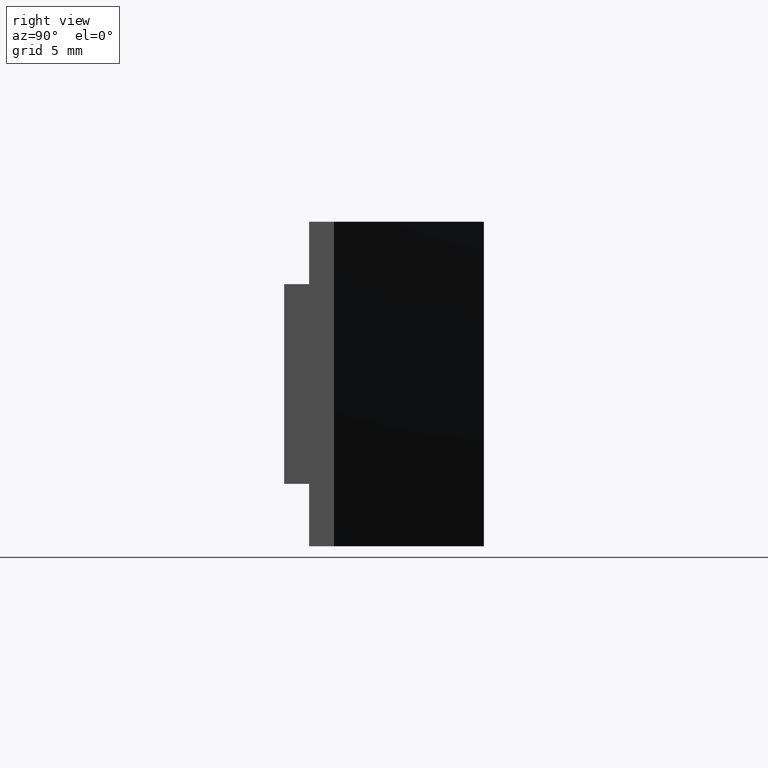
[diagram: clean part render]
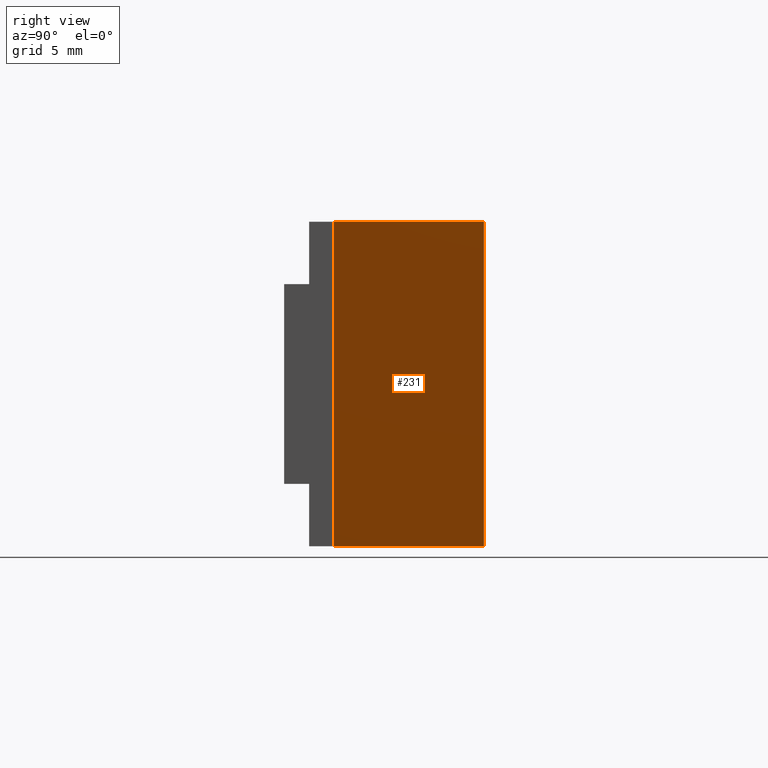
[diagram: same view with one face highlighted and labeled with its STEP entity id]
A machine part, right view. The second image highlights one B-rep face of the part: STEP entity #231.
In plain terms, the highlighted planar face has unit normal (0.4226, 0.9063, 0).
Its self-contained STEP definition (entity closure, byte-faithful):
#25=FACE_OUTER_BOUND('',#37,.T.);
#37=EDGE_LOOP('',(#201,#202,#203,#204));
#58=LINE('',#366,#88);
#61=LINE('',#371,#91);
#66=LINE('',#380,#96);
#68=LINE('',#384,#98);
#88=VECTOR('',#301,10.);
#91=VECTOR('',#306,10.);
#96=VECTOR('',#313,10.);
#98=VECTOR('',#319,10.);
#113=VERTEX_POINT('',#363);
#114=VERTEX_POINT('',#365);
#115=VERTEX_POINT('',#370);
#118=VERTEX_POINT('',#378);
#138=EDGE_CURVE('',#113,#114,#58,.T.);
#141=EDGE_CURVE('',#114,#115,#61,.T.);
#146=EDGE_CURVE('',#118,#113,#66,.T.);
#148=EDGE_CURVE('',#118,#115,#68,.T.);
#201=ORIENTED_EDGE('',*,*,#148,.T.);
#202=ORIENTED_EDGE('',*,*,#141,.F.);
#203=ORIENTED_EDGE('',*,*,#138,.F.);
#204=ORIENTED_EDGE('',*,*,#146,.F.);
#219=PLANE('',#266);
#231=ADVANCED_FACE('',(#25),#219,.T.);
#266=AXIS2_PLACEMENT_3D('',#385,#320,#321);
#301=DIRECTION('',(0.,0.,1.));
#306=DIRECTION('',(-0.90630778703665,0.422618261740699,0.));
#313=DIRECTION('',(0.90630778703665,-0.422618261740699,0.));
#319=DIRECTION('',(0.,0.,1.));
#320=DIRECTION('center_axis',(0.422618261740699,0.90630778703665,0.));
#321=DIRECTION('ref_axis',(-0.90630778703665,0.422618261740699,0.));
#363=CARTESIAN_POINT('',(12.5,2.,-6.5));
#365=CARTESIAN_POINT('',(12.5,2.,6.5));
#366=CARTESIAN_POINT('',(12.5,2.,0.));
#370=CARTESIAN_POINT('',(-0.367041523057356,8.,6.5));
#371=CARTESIAN_POINT('',(12.5,2.,6.5));
#378=CARTESIAN_POINT('',(-0.367041523057356,8.,-6.5));
#380=CARTESIAN_POINT('',(12.5,2.,-6.5));
#384=CARTESIAN_POINT('',(-0.367041523057356,8.,0.));
#385=CARTESIAN_POINT('Origin',(12.5,2.,0.));